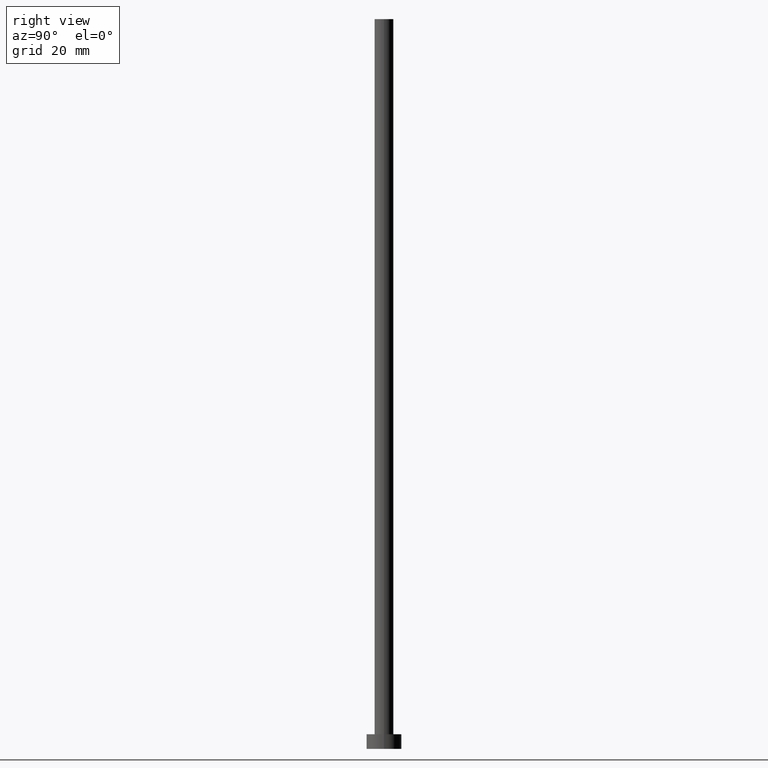
[diagram: clean part render]
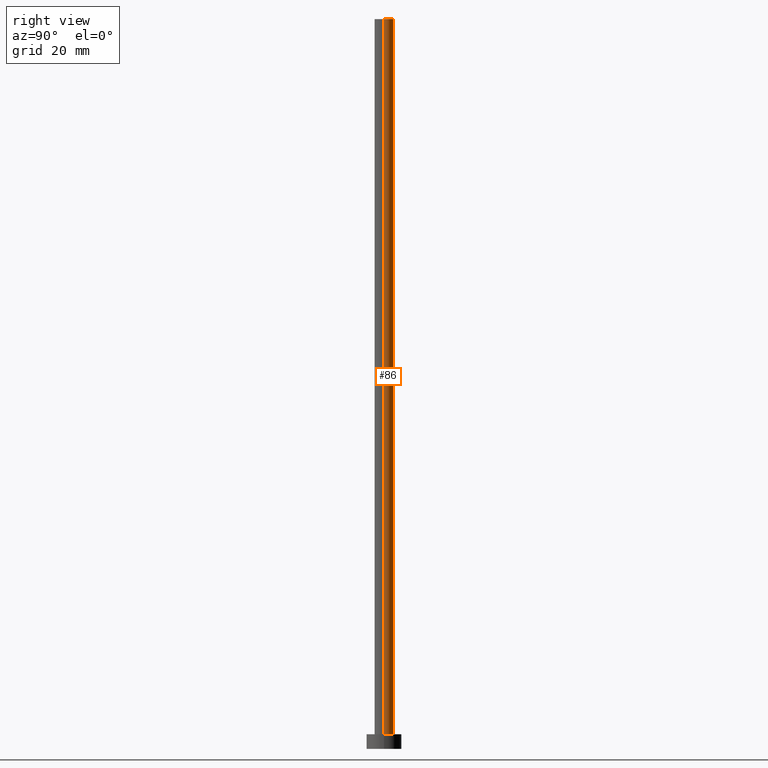
[diagram: same view with one face highlighted and labeled with its STEP entity id]
A machine part, right view. The second image highlights one B-rep face of the part: STEP entity #86.
In plain terms, the highlighted cylindrical surface (edge-blend (fillet) strip) has radius 3.25 mm, axis along (-0, -0, -1).
Its self-contained STEP definition (entity closure, byte-faithful):
#10 = DIRECTION ( 'NONE',  ( 1.000000000000000000, 0.000000000000000000, 0.000000000000000000 ) ) ;
#13 = CARTESIAN_POINT ( 'NONE',  ( -3.250000000000000444, 0.000000000000000000, 5.000000000000000000 ) ) ;
#15 = CARTESIAN_POINT ( 'NONE',  ( 3.250000000000000444, 3.980102097228898231E-16, 250.0000000000000000 ) ) ;
#16 = CYLINDRICAL_SURFACE ( 'NONE', #47, 3.250000000000000444 ) ;
#22 = CARTESIAN_POINT ( 'NONE',  ( 0.000000000000000000, 0.000000000000000000, 250.0000000000000000 ) ) ;
#23 = LINE ( 'NONE', #62, #110 ) ;
#29 = LINE ( 'NONE', #204, #244 ) ;
#42 = ORIENTED_EDGE ( 'NONE', *, *, #87, .T. ) ;
#46 = DIRECTION ( 'NONE',  ( 1.000000000000000000, 0.000000000000000000, 0.000000000000000000 ) ) ;
#47 = AXIS2_PLACEMENT_3D ( 'NONE', #202, #92, #166 ) ;
#60 = CARTESIAN_POINT ( 'NONE',  ( 0.000000000000000000, 0.000000000000000000, 5.000000000000000000 ) ) ;
#61 = ORIENTED_EDGE ( 'NONE', *, *, #243, .F. ) ;
#62 = CARTESIAN_POINT ( 'NONE',  ( -3.250000000000000444, 0.000000000000000000, 250.0000000000000000 ) ) ;
#75 = AXIS2_PLACEMENT_3D ( 'NONE', #22, #135, #10 ) ;
#79 = VERTEX_POINT ( 'NONE', #146 ) ;
#83 = AXIS2_PLACEMENT_3D ( 'NONE', #60, #117, #46 ) ;
#84 = DIRECTION ( 'NONE',  ( -0.000000000000000000, -0.000000000000000000, -1.000000000000000000 ) ) ;
#86 = ADVANCED_FACE ( 'NONE', ( #124 ), #16, .T. ) ;
#87 = EDGE_CURVE ( 'NONE', #174, #79, #29, .T. ) ;
#92 = DIRECTION ( 'NONE',  ( -0.000000000000000000, -0.000000000000000000, -1.000000000000000000 ) ) ;
#100 = VERTEX_POINT ( 'NONE', #13 ) ;
#110 = VECTOR ( 'NONE', #84, 1000.000000000000000 ) ;
#114 = CIRCLE ( 'NONE', #75, 3.250000000000000444 ) ;
#117 = DIRECTION ( 'NONE',  ( 0.000000000000000000, 0.000000000000000000, 1.000000000000000000 ) ) ;
#124 = FACE_OUTER_BOUND ( 'NONE', #155, .T. ) ;
#135 = DIRECTION ( 'NONE',  ( 0.000000000000000000, 0.000000000000000000, 1.000000000000000000 ) ) ;
#146 = CARTESIAN_POINT ( 'NONE',  ( 3.250000000000000444, 3.980102097228898231E-16, 5.000000000000000000 ) ) ;
#148 = CIRCLE ( 'NONE', #83, 3.250000000000000444 ) ;
#155 = EDGE_LOOP ( 'NONE', ( #200, #42, #215, #61 ) ) ;
#163 = DIRECTION ( 'NONE',  ( -0.000000000000000000, -0.000000000000000000, -1.000000000000000000 ) ) ;
#166 = DIRECTION ( 'NONE',  ( -1.000000000000000000, 0.000000000000000000, 0.000000000000000000 ) ) ;
#169 = CARTESIAN_POINT ( 'NONE',  ( -3.250000000000000444, 0.000000000000000000, 250.0000000000000000 ) ) ;
#174 = VERTEX_POINT ( 'NONE', #15 ) ;
#195 = EDGE_CURVE ( 'NONE', #79, #100, #148, .T. ) ;
#200 = ORIENTED_EDGE ( 'NONE', *, *, #213, .F. ) ;
#202 = CARTESIAN_POINT ( 'NONE',  ( 0.000000000000000000, 0.000000000000000000, 250.0000000000000000 ) ) ;
#204 = CARTESIAN_POINT ( 'NONE',  ( 3.250000000000000444, 3.980102097228898231E-16, 250.0000000000000000 ) ) ;
#212 = VERTEX_POINT ( 'NONE', #169 ) ;
#213 = EDGE_CURVE ( 'NONE', #174, #212, #114, .T. ) ;
#215 = ORIENTED_EDGE ( 'NONE', *, *, #195, .T. ) ;
#243 = EDGE_CURVE ( 'NONE', #212, #100, #23, .T. ) ;
#244 = VECTOR ( 'NONE', #163, 1000.000000000000000 ) ;